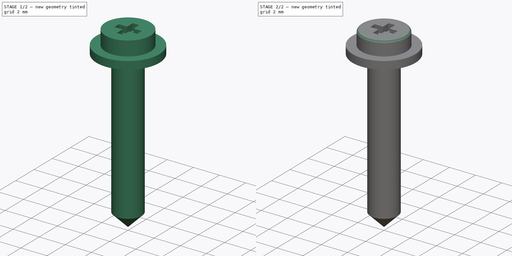
[diagram: build sequence overview — one tinted view per stage of 2, left to right]
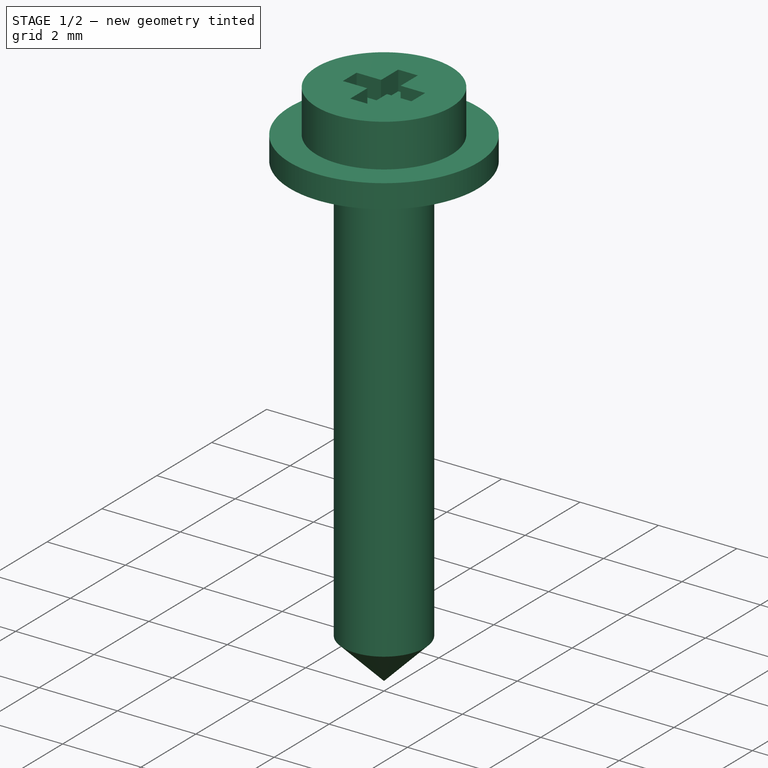
[diagram: stage 1 of 2 — iso view after this stage's code; geometry added in this stage tinted green]
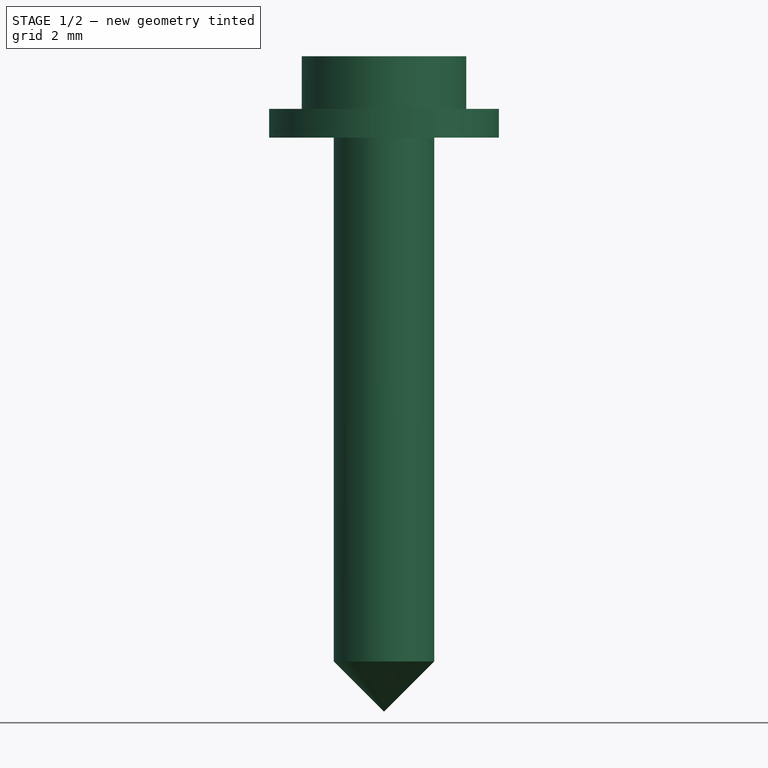
[diagram: stage 1 of 2 — front view after this stage's code; geometry added in this stage tinted green]
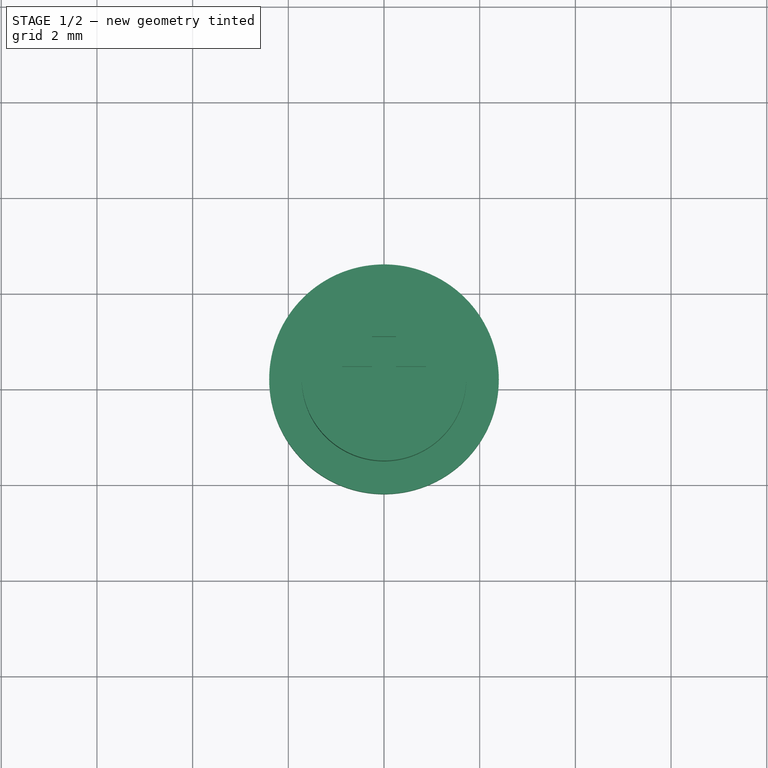
[diagram: stage 1 of 2 — top view after this stage's code; geometry added in this stage tinted green]
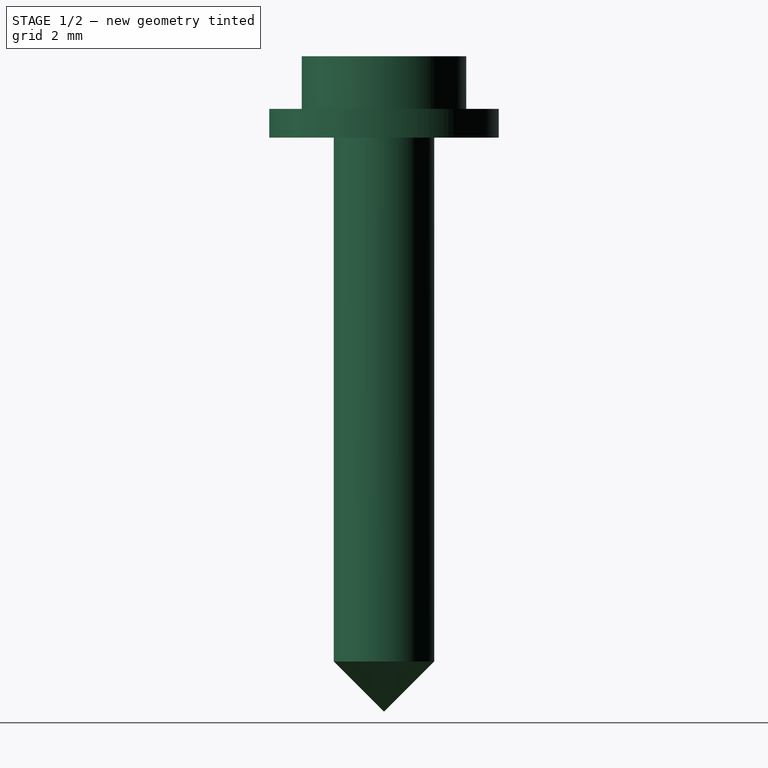
[diagram: stage 1 of 2 — right view after this stage's code; geometry added in this stage tinted green]
FCSTD DOCUMENT  (FreeCAD 0.14R3702 (Git))
Label: Futaba3003-bolt
Comment: Designed from the real Futaba 3003 horn bolt, using the caliper
License: CC-BY 3.0
LicenseURL: http://creativecommons.org/licenses/by/3.0/
objects: Sketcher::SketchObject×2, PartDesign::Revolution×1, PartDesign::Pocket×1, PartDesign::Fillet×1
note: 7 computed .brp shape members not serialized (recipe doc carries the construction recipe); baked Part::Feature solids carry a one-line shape summary decoded from their .brp

FEATURE [Sketcher::SketchObject] Sketch  label="bolt-body-sketch"
  Placement = pos=(0,0,0) rot=(1,0,0;1.5708rad)
  sketch-geometry (8):
    g0: LineSegment StartX=0 StartY=-12 StartZ=0 EndX=1.05 EndY=-10.95 EndZ=0
    g1: LineSegment StartX=1.05 StartY=-10.95 StartZ=0 EndX=1.05 EndY=0 EndZ=0
    g2: LineSegment StartX=1.05 StartY=0 StartZ=0 EndX=2.4 EndY=0 EndZ=0
    g3: LineSegment StartX=2.4 StartY=0 StartZ=0 EndX=2.4 EndY=0.6 EndZ=0
    g4: LineSegment StartX=2.4 StartY=0.6 StartZ=0 EndX=1.72 EndY=0.6 EndZ=0
    g5: LineSegment StartX=1.72 StartY=0.6 StartZ=0 EndX=1.72 EndY=1.7 EndZ=0
    g6: LineSegment StartX=1.72 StartY=1.7 StartZ=0 EndX=0 EndY=1.7 EndZ=0
    g7: LineSegment StartX=0 StartY=1.7 StartZ=0 EndX=0 EndY=-12 EndZ=0
  constraints (24):
    c: PointOnObject(g0,g-2)
    c: Coincident(g0,g1)
    c: PointOnObject(g1,g-1)
    c: Vertical(g1)
    c: Coincident(g1,g2)
    c: Horizontal(g2)
    c: Coincident(g2,g3)
    c: Coincident(g3,g4)
    c: Horizontal(g4)
    c: Coincident(g4,g5)
    c: Vertical(g5)
    c: Coincident(g5,g6)
    c: PointOnObject(g6,g-2)
    c: Horizontal(g6)
    c: Coincident(g6,g7)
    c: Coincident(g7,g0)
    c: DistanceY(g7) = -13.7
    c: DistanceX(g-1,g1) = 1.05
    c: Angle(g-1,g0) = 0.785398
    c: DistanceX(g-1,g2) = 2.4
    c: Vertical(g3)
    c: DistanceY(g3) = 0.6
    c: DistanceY(g-1,g6) = 1.7
    c: DistanceX(g6) = -1.72
FEATURE [PartDesign::Revolution] Revolution  label="bolt-body"
  Angle = 360
  Axis = (0,0,1)
  Base = (0,0,0)
  Placement = pos=(0,0,0) rot=(1,0,0;1.5708rad)
  ReferenceAxis = -> Sketch [V_Axis]
  Reversed = true
  Sketch = -> Sketch
FEATURE [Sketcher::SketchObject] Sketch001  label="cross-sketch"
  Placement = pos=(0,0,1.7) rot=(0,0,1;3.14159rad)
  Support = -> Revolution [Face7]
  sketch-geometry (12):
    g0: LineSegment StartX=-0.25 StartY=0.875 StartZ=0 EndX=0.25 EndY=0.875 EndZ=0
    g1: LineSegment StartX=0.25 StartY=0.875 StartZ=0 EndX=0.25 EndY=0.25 EndZ=0
    g2: LineSegment StartX=0.25 StartY=-0.875 StartZ=0 EndX=-0.25 EndY=-0.875 EndZ=0
    g3: LineSegment StartX=-0.25 StartY=-0.875 StartZ=0 EndX=-0.25 EndY=-0.25 EndZ=0
    g4: LineSegment StartX=-0.875 StartY=0.25 StartZ=0 EndX=-0.25 EndY=0.25 EndZ=0
    g5: LineSegment StartX=0.875 StartY=0.25 StartZ=0 EndX=0.875 EndY=-0.25 EndZ=0
    g6: LineSegment StartX=0.875 StartY=-0.25 StartZ=0 EndX=0.25 EndY=-0.25 EndZ=0
    g7: LineSegment StartX=-0.875 StartY=-0.25 StartZ=0 EndX=-0.875 EndY=0.25 EndZ=0
    g8: LineSegment StartX=-0.25 StartY=0.25 StartZ=0 EndX=-0.25 EndY=0.875 EndZ=0
    g9: LineSegment StartX=0.25 StartY=-0.25 StartZ=0 EndX=0.25 EndY=-0.875 EndZ=0
    g10: LineSegment StartX=0.25 StartY=0.25 StartZ=0 EndX=0.875 EndY=0.25 EndZ=0
    g11: LineSegment StartX=-0.25 StartY=-0.25 StartZ=0 EndX=-0.875 EndY=-0.25 EndZ=0
  constraints (30):
    c: Coincident(g0,g1)
    c: Coincident(g9,g2)
    c: Coincident(g2,g3)
    c: Coincident(g8,g0)
    c: Horizontal(g0)
    c: Horizontal(g2)
    c: Vertical(g1)
    c: Vertical(g3)
    c: Symmetric(g0,g9,g-1)
    c: DistanceX(g0) = 0.5
    c: Coincident(g10,g5)
    c: Coincident(g5,g6)
    c: Coincident(g11,g7)
    c: Coincident(g7,g4)
    c: Horizontal(g4)
    c: Horizontal(g6)
    c: Vertical(g5)
    c: Vertical(g7)
    c: Symmetric(g4,g5,g-1)
    c: Equal(g5,g0)
    c: Tangent(g3,g8)
    c: Tangent(g1,g9)
    c: Coincident(g4,g8)
    c: Coincident(g10,g1)
    c: Tangent(g4,g10)
    c: Coincident(g6,g9)
    c: Coincident(g11,g3)
    c: Tangent(g6,g11)
    c: DistanceY(g0,g2) = -1.75
    c: Equal(g1,g10)
FEATURE [PartDesign::Pocket] Pocket  label="cross"
  Length = 0.5
  Placement = pos=(0,0,0) rot=(1,0,0;1.5708rad)
  Sketch = -> Sketch001
  Type = 0
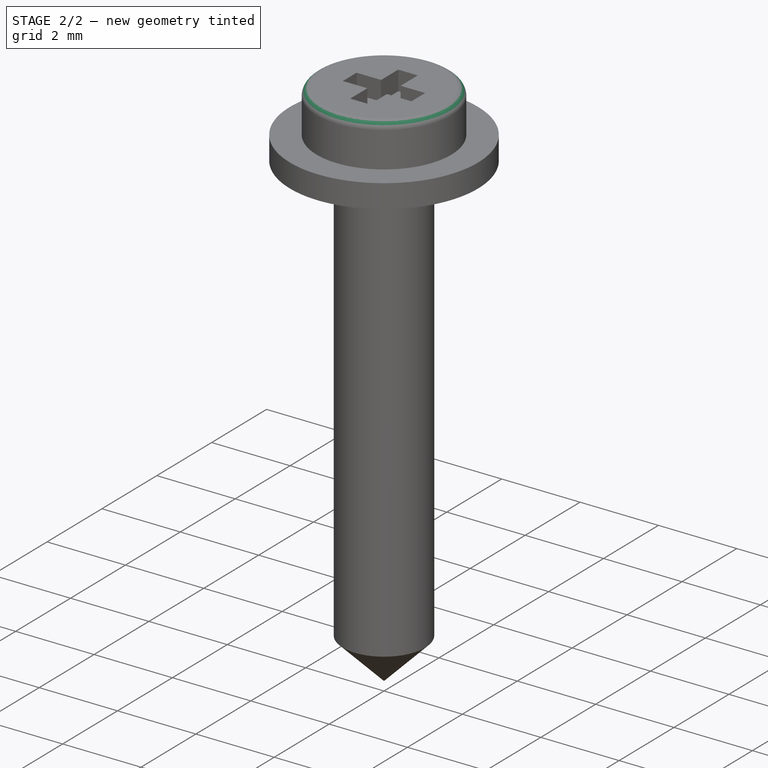
[diagram: stage 2 of 2 — iso view after this stage's code; geometry added in this stage tinted green]
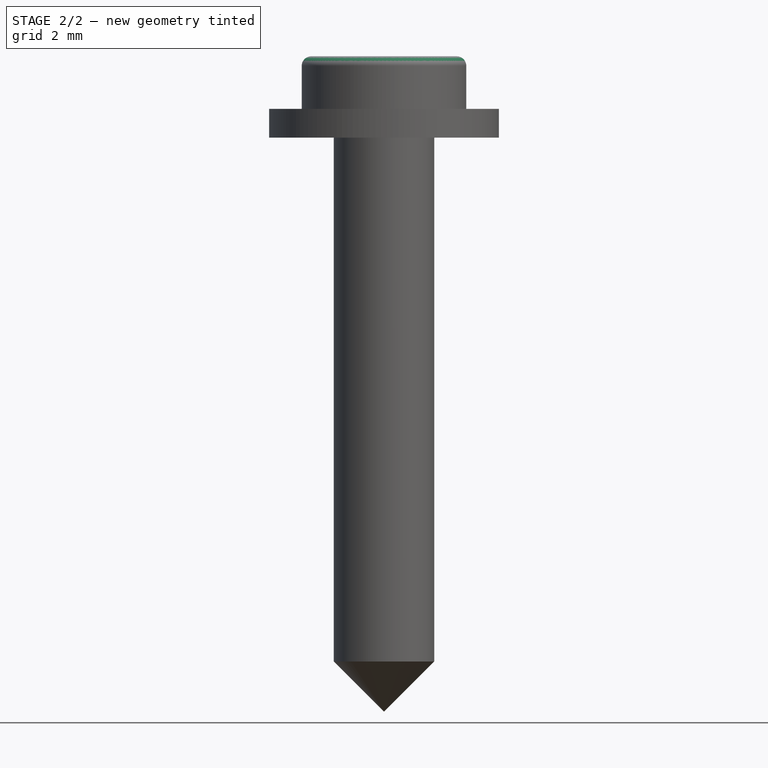
[diagram: stage 2 of 2 — front view after this stage's code; geometry added in this stage tinted green]
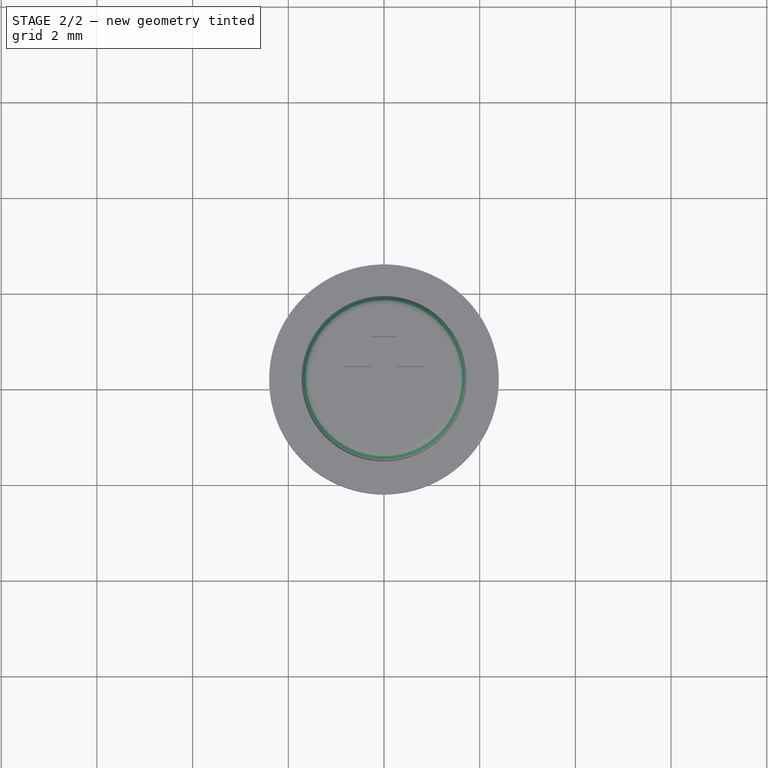
[diagram: stage 2 of 2 — top view after this stage's code; geometry added in this stage tinted green]
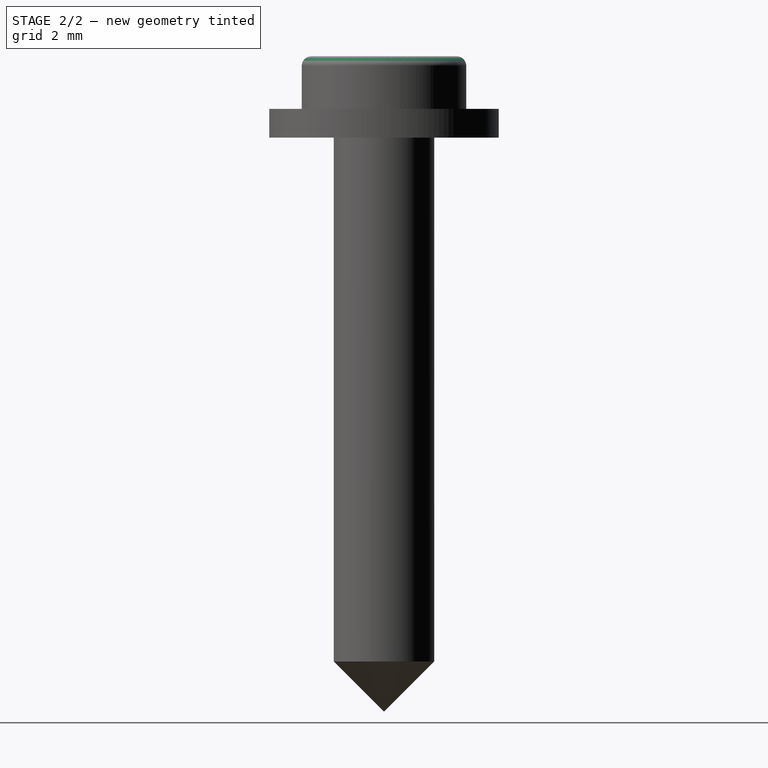
[diagram: stage 2 of 2 — right view after this stage's code; geometry added in this stage tinted green]
FEATURE [PartDesign::Fillet] Fillet  label="Final-bolt"
  Base = -> Pocket [Edge10]
  Placement = pos=(0,0,0) rot=(1,0,0;1.5708rad)
  Radius = 0.2
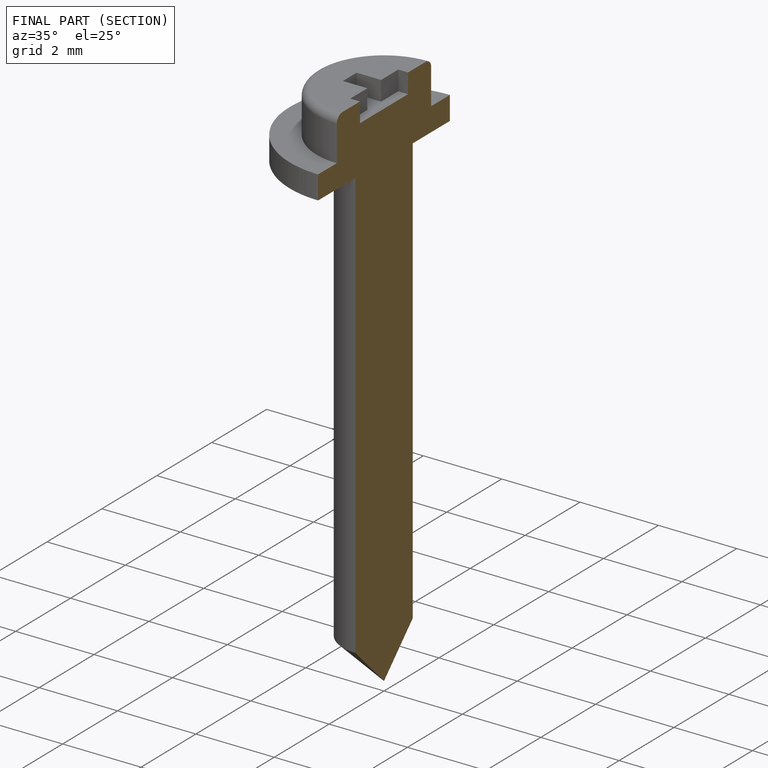
[diagram: finished part — half-section view (interior)]
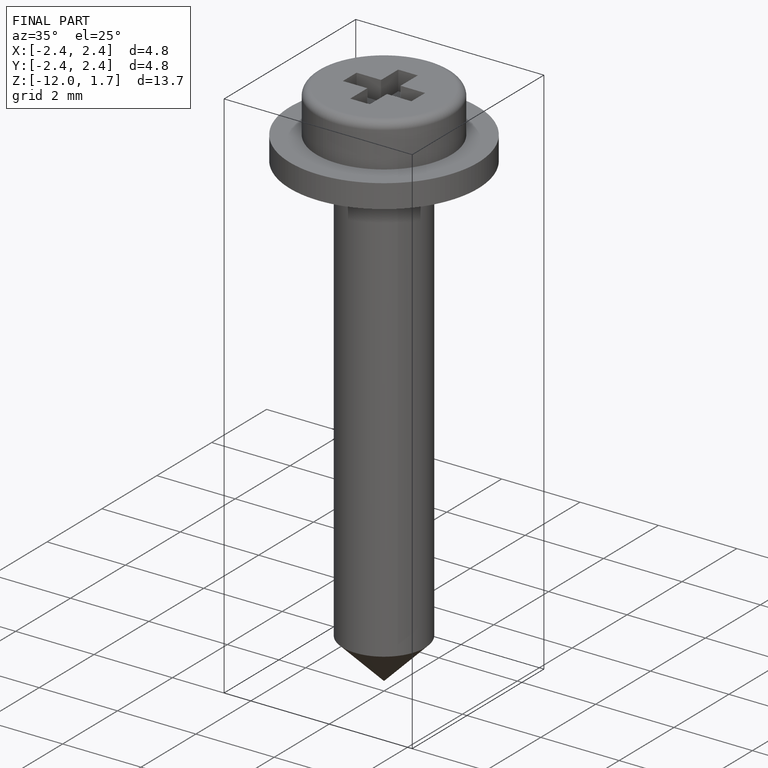
[diagram: finished part — iso view with bounding-box wireframe]
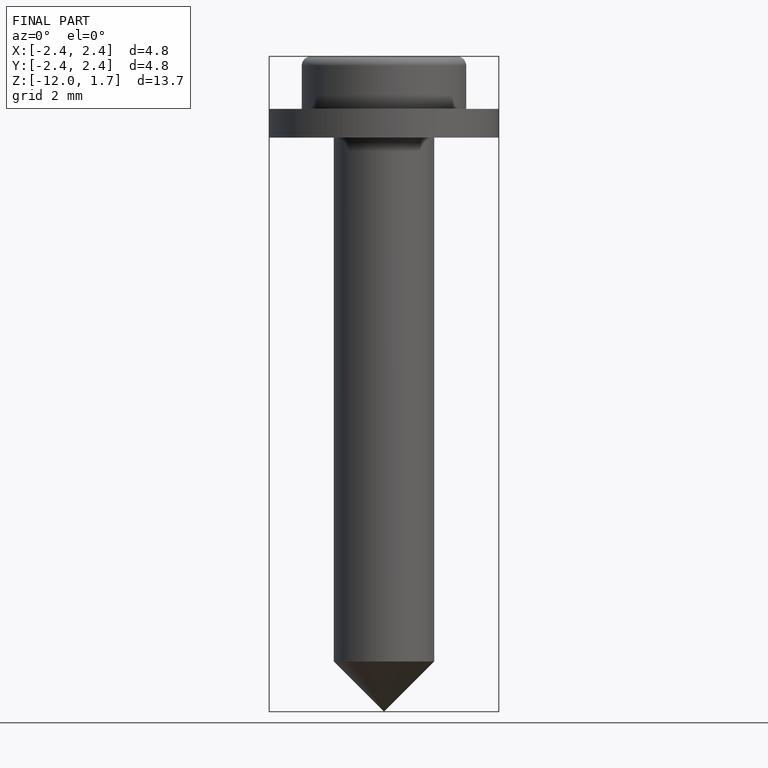
[diagram: finished part — front view with bounding-box wireframe]
